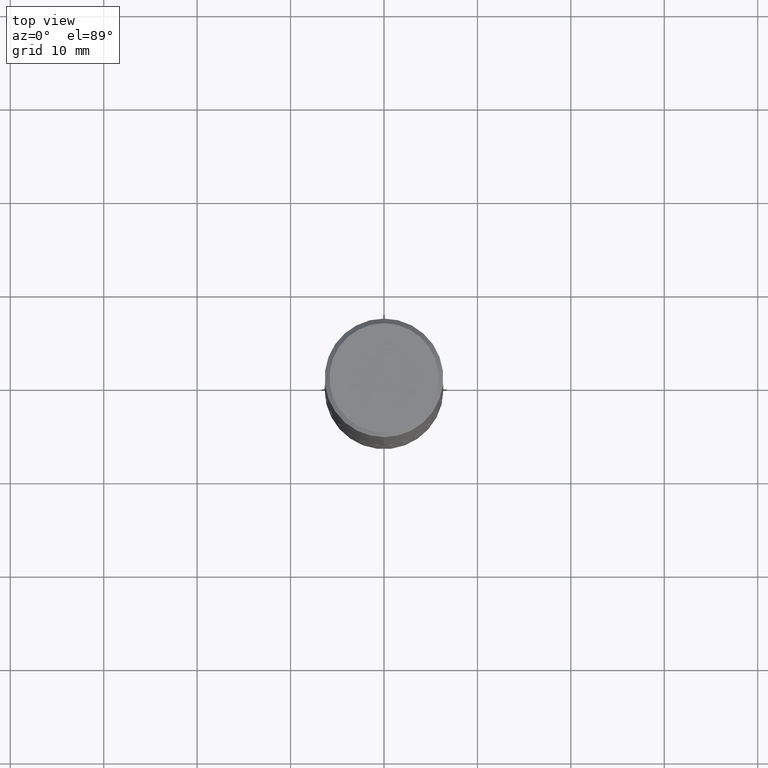
[diagram: clean part render]
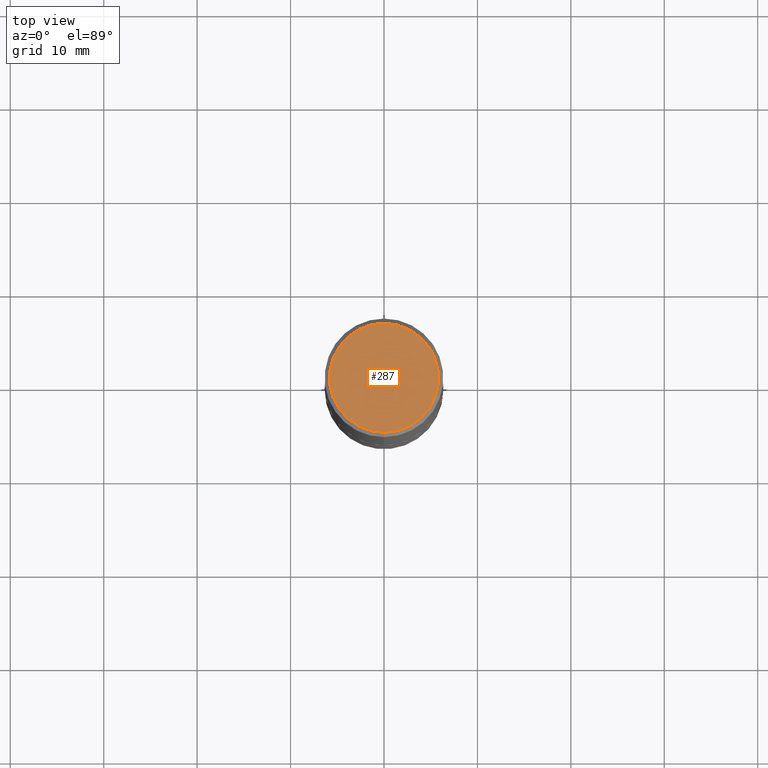
[diagram: same view with one face highlighted and labeled with its STEP entity id]
A machine part, top view. The second image highlights one B-rep face of the part: STEP entity #287.
In plain terms, the highlighted planar face has unit normal (0, -0, -1).
Its self-contained STEP definition (entity closure, byte-faithful):
#19 = EDGE_LOOP ( 'NONE', ( #86, #112 ) ) ;
#22 = CARTESIAN_POINT ( 'NONE',  ( 1.675911042644703774E-15, 0.2299999999999999822, -7.902351704636221132E-16 ) ) ;
#72 = AXIS2_PLACEMENT_3D ( 'NONE', #81, #117, #186 ) ;
#73 = AXIS2_PLACEMENT_3D ( 'NONE', #97, #195, #321 ) ;
#81 = CARTESIAN_POINT ( 'NONE',  ( -3.092417094045251766E-46, 4.413367222556218531E-32, 1.264294592746725022E-17 ) ) ;
#86 = ORIENTED_EDGE ( 'NONE', *, *, #143, .T. ) ;
#87 = EDGE_CURVE ( 'NONE', #162, #94, #336, .T. ) ;
#94 = VERTEX_POINT ( 'NONE', #22 ) ;
#97 = CARTESIAN_POINT ( 'NONE',  ( -3.092417094045251766E-46, 4.413367222556218531E-32, 1.264294592746725022E-17 ) ) ;
#112 = ORIENTED_EDGE ( 'NONE', *, *, #87, .T. ) ;
#117 = DIRECTION ( 'NONE',  ( -2.445962445609187395E-29, 3.490774419091693439E-15, 1.000000000000000000 ) ) ;
#143 = EDGE_CURVE ( 'NONE', #94, #162, #411, .T. ) ;
#162 = VERTEX_POINT ( 'NONE', #255 ) ;
#186 = DIRECTION ( 'NONE',  ( -6.982962677686265922E-15, -1.000000000000000000, 3.490774419091693045E-15 ) ) ;
#195 = DIRECTION ( 'NONE',  ( -2.445962445609187395E-29, 3.490774419091693439E-15, 1.000000000000000000 ) ) ;
#207 = DIRECTION ( 'NONE',  ( 6.982962677686265922E-15, 1.000000000000000000, -3.490774419091693439E-15 ) ) ;
#235 = FACE_OUTER_BOUND ( 'NONE', #19, .T. ) ;
#255 = CARTESIAN_POINT ( 'NONE',  ( -1.646519519465166968E-15, -0.2299999999999999822, 8.155210623185566599E-16 ) ) ;
#257 = PLANE ( 'NONE',  #404 ) ;
#287 = ADVANCED_FACE ( 'NONE', ( #235 ), #257, .F. ) ;
#304 = CARTESIAN_POINT ( 'NONE',  ( 1.606081415867841067E-15, 0.2299999999999999822, -7.965566434273558732E-16 ) ) ;
#305 = DIRECTION ( 'NONE',  ( 2.445962445609187114E-29, -3.490774419091693439E-15, -1.000000000000000000 ) ) ;
#321 = DIRECTION ( 'NONE',  ( -6.982962677686265922E-15, -1.000000000000000000, 3.490774419091693045E-15 ) ) ;
#336 = CIRCLE ( 'NONE', #73, 0.2299999999999999822 ) ;
#404 = AXIS2_PLACEMENT_3D ( 'NONE', #304, #305, #207 ) ;
#411 = CIRCLE ( 'NONE', #72, 0.2299999999999999822 ) ;